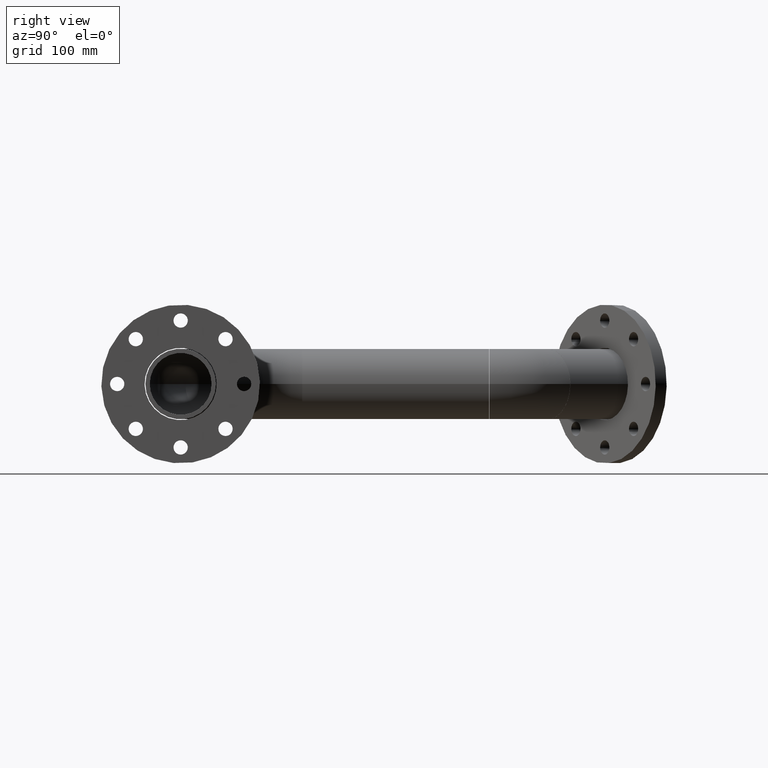
[diagram: clean part render]
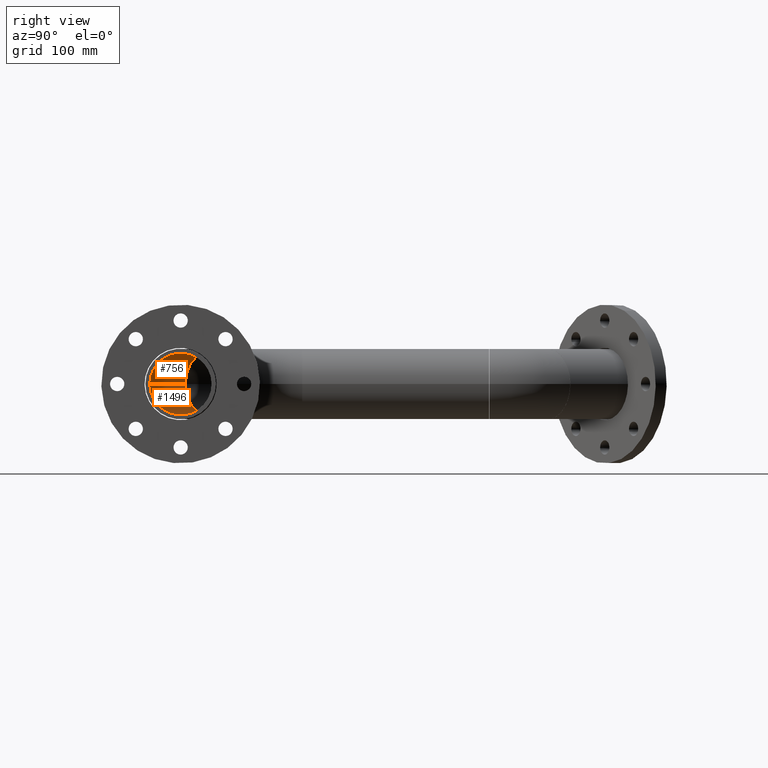
[diagram: same view with one multi-face feature highlighted, each face labeled with its STEP entity id]
A machine part, right view. The highlighted faces form ONE feature: a constant-radius fillet chain: 2 tangent blend faces with common blend radius 38.95 mm. The faces share edges in the B-rep.
Their STEP definitions:
[1] entity #1496 (Torus):
#28 = CARTESIAN_POINT ( 'NONE',  ( 0.000000000000000000, 0.000000000000000000, 0.000000000000000000 ) ) ;
#57 = EDGE_CURVE ( 'NONE', #1280, #523, #2336, .T. ) ;
#60 = ORIENTED_EDGE ( 'NONE', *, *, #2082, .T. ) ;
#180 = CARTESIAN_POINT ( 'NONE',  ( 0.000000000000000000, 0.000000000000000000, -4.769999282678941594E-15 ) ) ;
#183 = VERTEX_POINT ( 'NONE', #360 ) ;
#211 = AXIS2_PLACEMENT_3D ( 'NONE', #28, #2284, #1770 ) ;
#282 = CARTESIAN_POINT ( 'NONE',  ( 0.000000000000000000, 114.5000000000000000, 0.000000000000000000 ) ) ;
#360 = CARTESIAN_POINT ( 'NONE',  ( 0.000000000000000000, 75.55000000000001137, -4.769999282678942383E-15 ) ) ;
#367 = CARTESIAN_POINT ( 'NONE',  ( -53.42191731864337356, 53.42191731864395621, -4.769999282678941594E-15 ) ) ;
#385 = AXIS2_PLACEMENT_3D ( 'NONE', #521, #538, #1832 ) ;
#447 = EDGE_CURVE ( 'NONE', #1554, #523, #1702, .T. ) ;
#460 = DIRECTION ( 'NONE',  ( -0.7071067811865513475, -0.7071067811865436870, -0.000000000000000000 ) ) ;
#483 = CARTESIAN_POINT ( 'NONE',  ( 0.000000000000000000, 153.4500000000000171, 0.000000000000000000 ) ) ;
#521 = CARTESIAN_POINT ( 'NONE',  ( 0.000000000000000000, 0.000000000000000000, 0.000000000000000000 ) ) ;
#523 = VERTEX_POINT ( 'NONE', #1011 ) ;
#538 = DIRECTION ( 'NONE',  ( 0.000000000000000000, 0.000000000000000000, 1.000000000000000000 ) ) ;
#805 = ORIENTED_EDGE ( 'NONE', *, *, #447, .T. ) ;
#810 = CARTESIAN_POINT ( 'NONE',  ( -80.96372644585925116, 80.96372644586013223, 0.000000000000000000 ) ) ;
#828 = TOROIDAL_SURFACE ( 'NONE', #385, 114.5000000000000000, 38.95000000000000284 ) ;
#921 = ORIENTED_EDGE ( 'NONE', *, *, #57, .F. ) ;
#941 = DIRECTION ( 'NONE',  ( 0.000000000000000000, 0.000000000000000000, 1.000000000000000000 ) ) ;
#951 = DIRECTION ( 'NONE',  ( 0.000000000000000000, 0.000000000000000000, -1.000000000000000000 ) ) ;
#1011 = CARTESIAN_POINT ( 'NONE',  ( -108.5055355730751359, 108.5055355730763011, 0.000000000000000000 ) ) ;
#1197 = AXIS2_PLACEMENT_3D ( 'NONE', #282, #2190, #1435 ) ;
#1280 = VERTEX_POINT ( 'NONE', #483 ) ;
#1326 = EDGE_CURVE ( 'NONE', #183, #1280, #2249, .T. ) ;
#1435 = DIRECTION ( 'NONE',  ( 0.000000000000000000, 0.000000000000000000, -1.000000000000000000 ) ) ;
#1481 = FACE_OUTER_BOUND ( 'NONE', #1953, .T. ) ;
#1496 = ADVANCED_FACE ( 'NONE', ( #1481 ), #828, .F. ) ;
#1554 = VERTEX_POINT ( 'NONE', #367 ) ;
#1702 = CIRCLE ( 'NONE', #2306, 38.95000000000000284 ) ;
#1770 = DIRECTION ( 'NONE',  ( 1.000000000000000000, 0.000000000000000000, 0.000000000000000000 ) ) ;
#1812 = DIRECTION ( 'NONE',  ( 1.000000000000000000, 0.000000000000000000, 0.000000000000000000 ) ) ;
#1832 = DIRECTION ( 'NONE',  ( 1.000000000000000000, 0.000000000000000000, 0.000000000000000000 ) ) ;
#1833 = ORIENTED_EDGE ( 'NONE', *, *, #1326, .F. ) ;
#1953 = EDGE_LOOP ( 'NONE', ( #921, #1833, #60, #805 ) ) ;
#2082 = EDGE_CURVE ( 'NONE', #183, #1554, #2101, .T. ) ;
#2101 = CIRCLE ( 'NONE', #2228, 75.55000000000001137 ) ;
#2190 = DIRECTION ( 'NONE',  ( -1.000000000000000000, -0.000000000000000000, -0.000000000000000000 ) ) ;
#2228 = AXIS2_PLACEMENT_3D ( 'NONE', #180, #941, #1812 ) ;
#2249 = CIRCLE ( 'NONE', #1197, 38.95000000000000284 ) ;
#2284 = DIRECTION ( 'NONE',  ( 0.000000000000000000, 0.000000000000000000, 1.000000000000000000 ) ) ;
#2306 = AXIS2_PLACEMENT_3D ( 'NONE', #810, #460, #951 ) ;
#2336 = CIRCLE ( 'NONE', #211, 153.4500000000000171 ) ;
[2] entity #756 (Torus):
#28 = CARTESIAN_POINT ( 'NONE',  ( 0.000000000000000000, 0.000000000000000000, 0.000000000000000000 ) ) ;
#57 = EDGE_CURVE ( 'NONE', #1280, #523, #2336, .T. ) ;
#91 = AXIS2_PLACEMENT_3D ( 'NONE', #1024, #1544, #615 ) ;
#180 = CARTESIAN_POINT ( 'NONE',  ( 0.000000000000000000, 0.000000000000000000, -4.769999282678941594E-15 ) ) ;
#183 = VERTEX_POINT ( 'NONE', #360 ) ;
#198 = CIRCLE ( 'NONE', #802, 38.95000000000000284 ) ;
#211 = AXIS2_PLACEMENT_3D ( 'NONE', #28, #2284, #1770 ) ;
#248 = ORIENTED_EDGE ( 'NONE', *, *, #57, .T. ) ;
#319 = CARTESIAN_POINT ( 'NONE',  ( 0.000000000000000000, 0.000000000000000000, 0.000000000000000000 ) ) ;
#360 = CARTESIAN_POINT ( 'NONE',  ( 0.000000000000000000, 75.55000000000001137, -4.769999282678942383E-15 ) ) ;
#367 = CARTESIAN_POINT ( 'NONE',  ( -53.42191731864337356, 53.42191731864395621, -4.769999282678941594E-15 ) ) ;
#483 = CARTESIAN_POINT ( 'NONE',  ( 0.000000000000000000, 153.4500000000000171, 0.000000000000000000 ) ) ;
#501 = ORIENTED_EDGE ( 'NONE', *, *, #2082, .F. ) ;
#523 = VERTEX_POINT ( 'NONE', #1011 ) ;
#615 = DIRECTION ( 'NONE',  ( 0.000000000000000000, 0.000000000000000000, -1.000000000000000000 ) ) ;
#631 = ORIENTED_EDGE ( 'NONE', *, *, #1188, .F. ) ;
#740 = EDGE_LOOP ( 'NONE', ( #631, #248, #1525, #501 ) ) ;
#756 = ADVANCED_FACE ( 'NONE', ( #1120 ), #980, .F. ) ;
#802 = AXIS2_PLACEMENT_3D ( 'NONE', #2027, #913, #2403 ) ;
#881 = DIRECTION ( 'NONE',  ( 0.000000000000000000, 0.000000000000000000, 1.000000000000000000 ) ) ;
#913 = DIRECTION ( 'NONE',  ( -0.7071067811865513475, -0.7071067811865436870, -0.000000000000000000 ) ) ;
#941 = DIRECTION ( 'NONE',  ( 0.000000000000000000, 0.000000000000000000, 1.000000000000000000 ) ) ;
#980 = TOROIDAL_SURFACE ( 'NONE', #1508, 114.5000000000000000, 38.95000000000000284 ) ;
#1011 = CARTESIAN_POINT ( 'NONE',  ( -108.5055355730751359, 108.5055355730763011, 0.000000000000000000 ) ) ;
#1019 = EDGE_CURVE ( 'NONE', #523, #1554, #198, .T. ) ;
#1024 = CARTESIAN_POINT ( 'NONE',  ( 0.000000000000000000, 114.5000000000000000, 0.000000000000000000 ) ) ;
#1120 = FACE_OUTER_BOUND ( 'NONE', #740, .T. ) ;
#1188 = EDGE_CURVE ( 'NONE', #1280, #183, #1307, .T. ) ;
#1280 = VERTEX_POINT ( 'NONE', #483 ) ;
#1282 = DIRECTION ( 'NONE',  ( 1.000000000000000000, 0.000000000000000000, 0.000000000000000000 ) ) ;
#1307 = CIRCLE ( 'NONE', #91, 38.95000000000000284 ) ;
#1508 = AXIS2_PLACEMENT_3D ( 'NONE', #319, #881, #1282 ) ;
#1525 = ORIENTED_EDGE ( 'NONE', *, *, #1019, .T. ) ;
#1544 = DIRECTION ( 'NONE',  ( -1.000000000000000000, -0.000000000000000000, -0.000000000000000000 ) ) ;
#1554 = VERTEX_POINT ( 'NONE', #367 ) ;
#1770 = DIRECTION ( 'NONE',  ( 1.000000000000000000, 0.000000000000000000, 0.000000000000000000 ) ) ;
#1812 = DIRECTION ( 'NONE',  ( 1.000000000000000000, 0.000000000000000000, 0.000000000000000000 ) ) ;
#2027 = CARTESIAN_POINT ( 'NONE',  ( -80.96372644585925116, 80.96372644586013223, 0.000000000000000000 ) ) ;
#2082 = EDGE_CURVE ( 'NONE', #183, #1554, #2101, .T. ) ;
#2101 = CIRCLE ( 'NONE', #2228, 75.55000000000001137 ) ;
#2228 = AXIS2_PLACEMENT_3D ( 'NONE', #180, #941, #1812 ) ;
#2284 = DIRECTION ( 'NONE',  ( 0.000000000000000000, 0.000000000000000000, 1.000000000000000000 ) ) ;
#2336 = CIRCLE ( 'NONE', #211, 153.4500000000000171 ) ;
#2403 = DIRECTION ( 'NONE',  ( 0.000000000000000000, 0.000000000000000000, -1.000000000000000000 ) ) ;